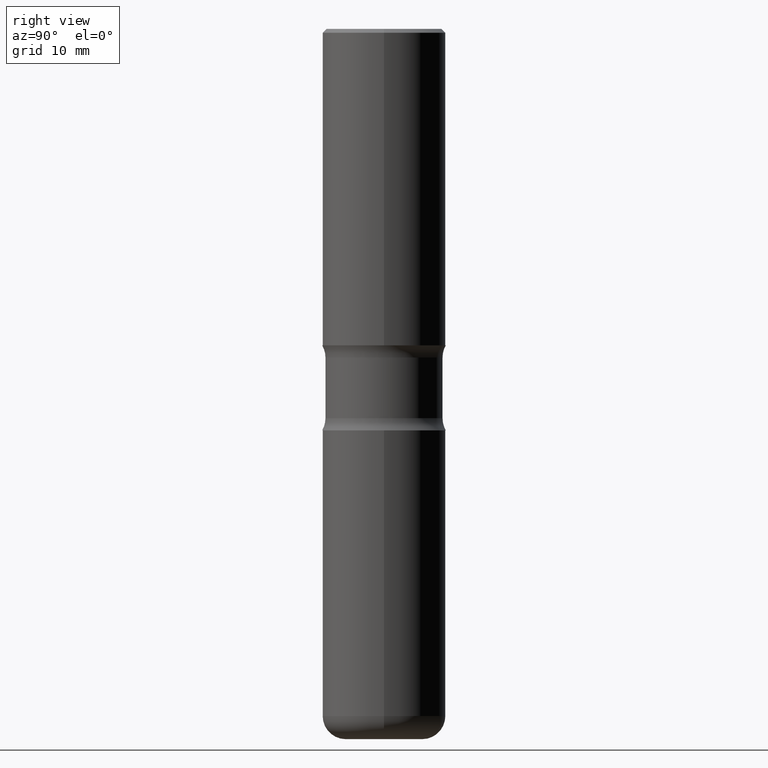
[diagram: clean part render]
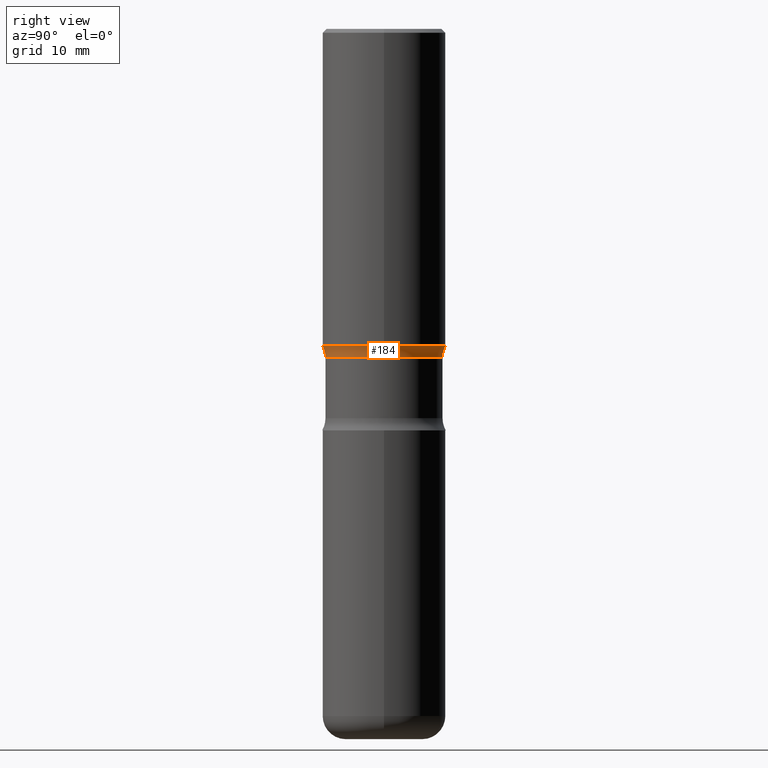
[diagram: same view with one face highlighted and labeled with its STEP entity id]
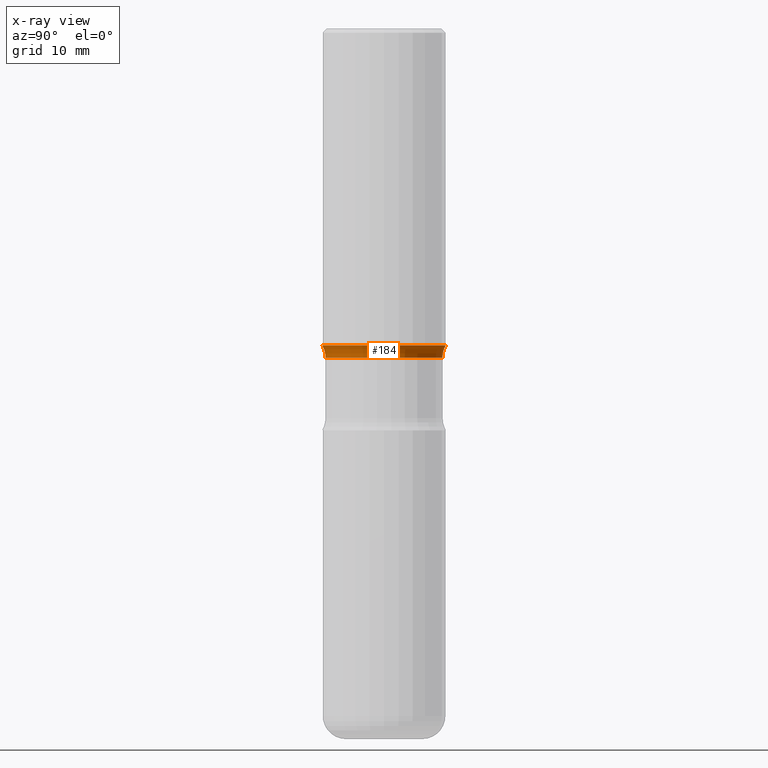
[diagram: x-ray of the same camera — body ghosted, the highlighted face saturated]
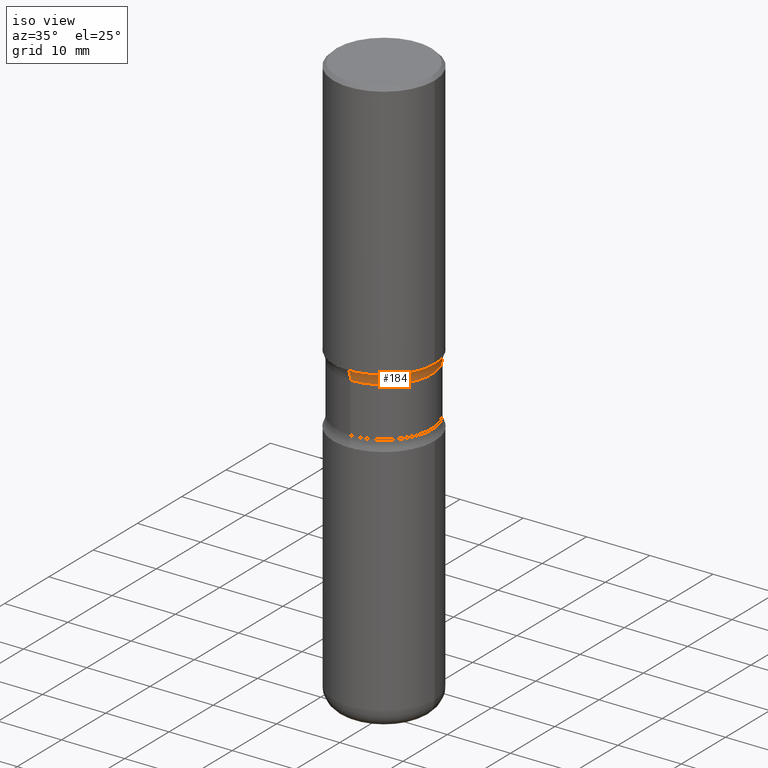
[diagram: same view with one face highlighted and labeled with its STEP entity id]
A machine part, right view. The second image highlights one B-rep face of the part: STEP entity #184.
The next image is the same camera in x-ray: the body ghosted, the highlighted face saturated — about 0% of this face is hidden behind the body in this view.
A second angle (iso view) of the same face is appended — the face is thin or edge-on in the first view.
In plain terms, the highlighted toroidal blend (fillet) surface has major radius 10.7569 mm and minor (blend) radius 3.175 mm.
Its self-contained STEP definition (entity closure, byte-faithful):
#25 = DIRECTION ( 'NONE',  ( 6.982962677686264344E-15, 1.000000000000000000, -3.469564049740291192E-15 ) ) ;
#43 = CARTESIAN_POINT ( 'NONE',  ( -2.905420902056200286E-15, -0.4235000000000055387, -1.676083042035703574 ) ) ;
#44 = CARTESIAN_POINT ( 'NONE',  ( 2.957284694000172985E-15, 0.4234999999999939369, -1.676083042035706461 ) ) ;
#52 = EDGE_CURVE ( 'NONE', #371, #256, #215, .T. ) ;
#66 = DIRECTION ( 'NONE',  ( 6.982962677686265922E-15, 1.000000000000000000, -3.660767830705881533E-15 ) ) ;
#71 = EDGE_LOOP ( 'NONE', ( #316, #402, #540, #421 ) ) ;
#90 = DIRECTION ( 'NONE',  ( 1.000000000000000000, -6.860497997771530774E-15, 4.840549151551353916E-29 ) ) ;
#107 = AXIS2_PLACEMENT_3D ( 'NONE', #527, #412, #477 ) ;
#110 = CARTESIAN_POINT ( 'NONE',  ( 4.104093333986238710E-29, -5.844444904265456773E-15, -1.676083042035705128 ) ) ;
#116 = AXIS2_PLACEMENT_3D ( 'NONE', #43, #90, #420 ) ;
#170 = AXIS2_PLACEMENT_3D ( 'NONE', #110, #447, #66 ) ;
#182 = CARTESIAN_POINT ( 'NONE',  ( 2.199284095337330103E-15, 0.3149499999999945676, -1.614100000000000312 ) ) ;
#184 = ADVANCED_FACE ( 'NONE', ( #532 ), #534, .F. ) ;
#197 = CIRCLE ( 'NONE', #116, 0.1249999999999999029 ) ;
#215 = CIRCLE ( 'NONE', #344, 0.1249999999999999029 ) ;
#226 = CARTESIAN_POINT ( 'NONE',  ( 3.953398348740424918E-29, -5.626768321108955444E-15, -1.614099999999999424 ) ) ;
#234 = AXIS2_PLACEMENT_3D ( 'NONE', #226, #322, #25 ) ;
#256 = VERTEX_POINT ( 'NONE', #182 ) ;
#280 = DIRECTION ( 'NONE',  ( -1.000000000000000000, 6.982962677686265922E-15, -4.883557194083112340E-29 ) ) ;
#316 = ORIENTED_EDGE ( 'NONE', *, *, #485, .F. ) ;
#322 = DIRECTION ( 'NONE',  ( 2.431229257173367832E-29, -3.511873183492796268E-15, -1.000000000000000000 ) ) ;
#332 = DIRECTION ( 'NONE',  ( -6.982962677686264344E-15, -1.000000000000000000, 0.000000000000000000 ) ) ;
#334 = CARTESIAN_POINT ( 'NONE',  ( -2.104286248366432366E-15, -0.2985000000000057052, -1.676083042035704018 ) ) ;
#343 = VERTEX_POINT ( 'NONE', #334 ) ;
#344 = AXIS2_PLACEMENT_3D ( 'NONE', #44, #280, #332 ) ;
#352 = CIRCLE ( 'NONE', #234, 0.3149500000000001743 ) ;
#370 = CARTESIAN_POINT ( 'NONE',  ( -2.160713844398105103E-15, -0.3149500000000057254, -1.614099999999998314 ) ) ;
#371 = VERTEX_POINT ( 'NONE', #471 ) ;
#391 = VERTEX_POINT ( 'NONE', #370 ) ;
#402 = ORIENTED_EDGE ( 'NONE', *, *, #453, .F. ) ;
#412 = DIRECTION ( 'NONE',  ( 2.431229257173367832E-29, -3.511873183492796268E-15, -1.000000000000000000 ) ) ;
#420 = DIRECTION ( 'NONE',  ( 6.860497997771531562E-15, 1.000000000000000000, 0.000000000000000000 ) ) ;
#421 = ORIENTED_EDGE ( 'NONE', *, *, #428, .T. ) ;
#428 = EDGE_CURVE ( 'NONE', #256, #391, #352, .T. ) ;
#433 = CIRCLE ( 'NONE', #170, 0.2984999999999998765 ) ;
#447 = DIRECTION ( 'NONE',  ( 2.431229257173367832E-29, -3.511873183492796268E-15, -1.000000000000000000 ) ) ;
#453 = EDGE_CURVE ( 'NONE', #371, #343, #433, .T. ) ;
#471 = CARTESIAN_POINT ( 'NONE',  ( 2.084414359289390435E-15, 0.2984999999999940479, -1.676083042035706239 ) ) ;
#477 = DIRECTION ( 'NONE',  ( 6.982962677686265922E-15, 1.000000000000000000, -3.511873183492796268E-15 ) ) ;
#485 = EDGE_CURVE ( 'NONE', #343, #391, #197, .T. ) ;
#527 = CARTESIAN_POINT ( 'NONE',  ( 4.146499777326381489E-29, -5.783716463777509239E-15, -1.676083042035705128 ) ) ;
#532 = FACE_OUTER_BOUND ( 'NONE', #71, .T. ) ;
#534 = TOROIDAL_SURFACE ( 'NONE', #107, 0.4234999999999997100, 0.1249999999999999029 ) ;
#540 = ORIENTED_EDGE ( 'NONE', *, *, #52, .T. ) ;